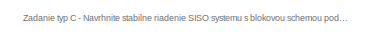
[diagram: root canvas - part 1/3, top left region]
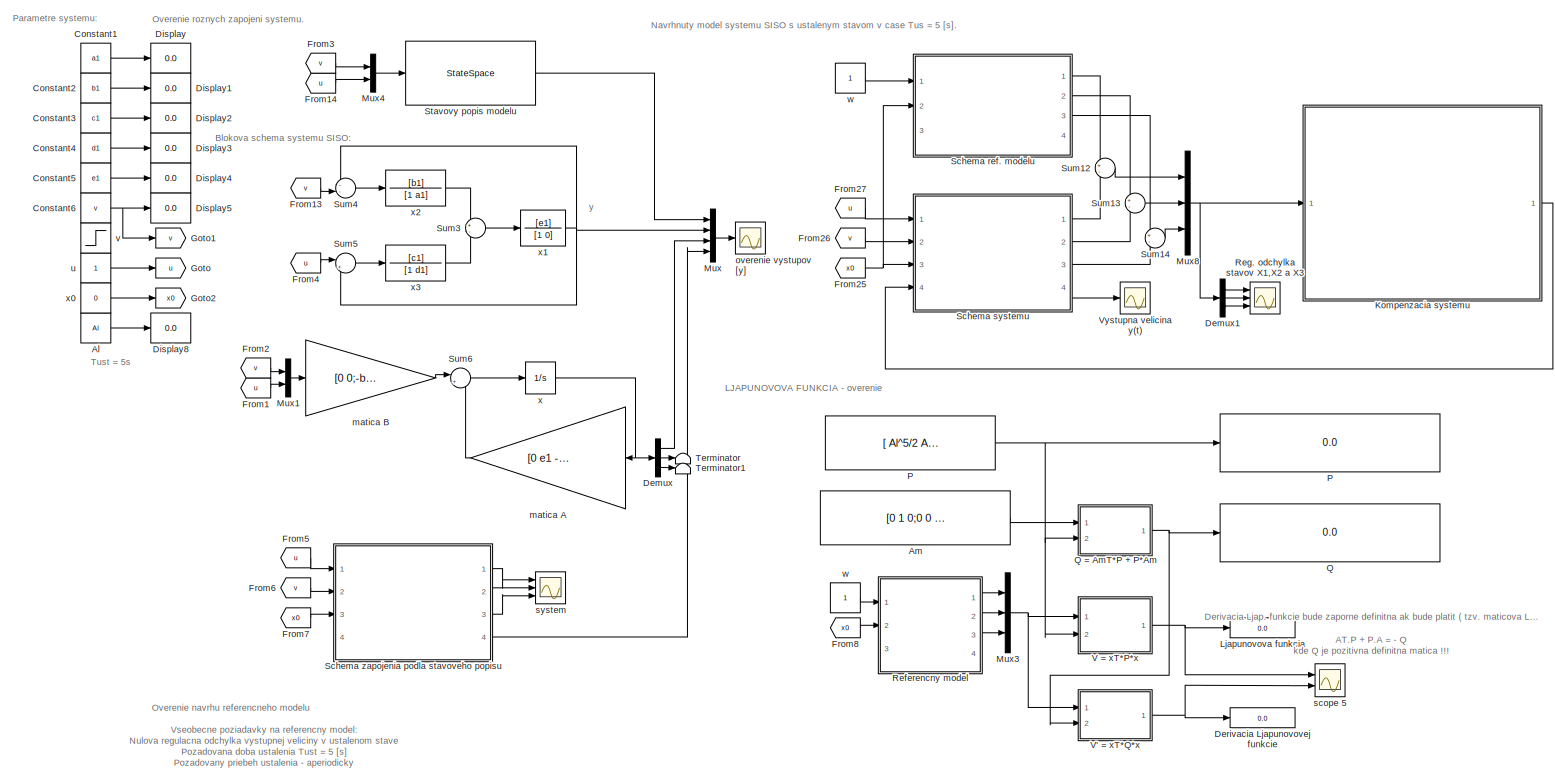
[diagram: root canvas - part 2/3, full width, middle band]
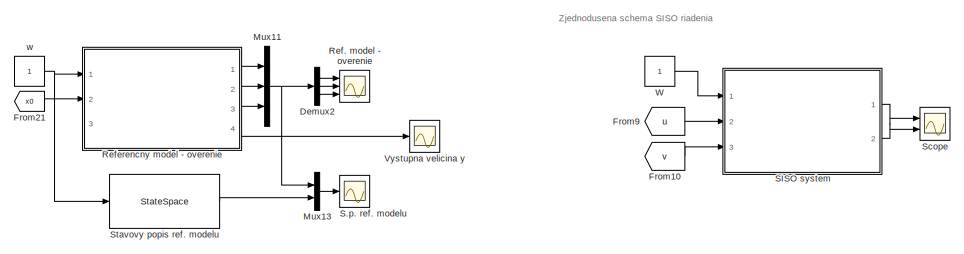
[diagram: root canvas - part 3/3, bottom center region]
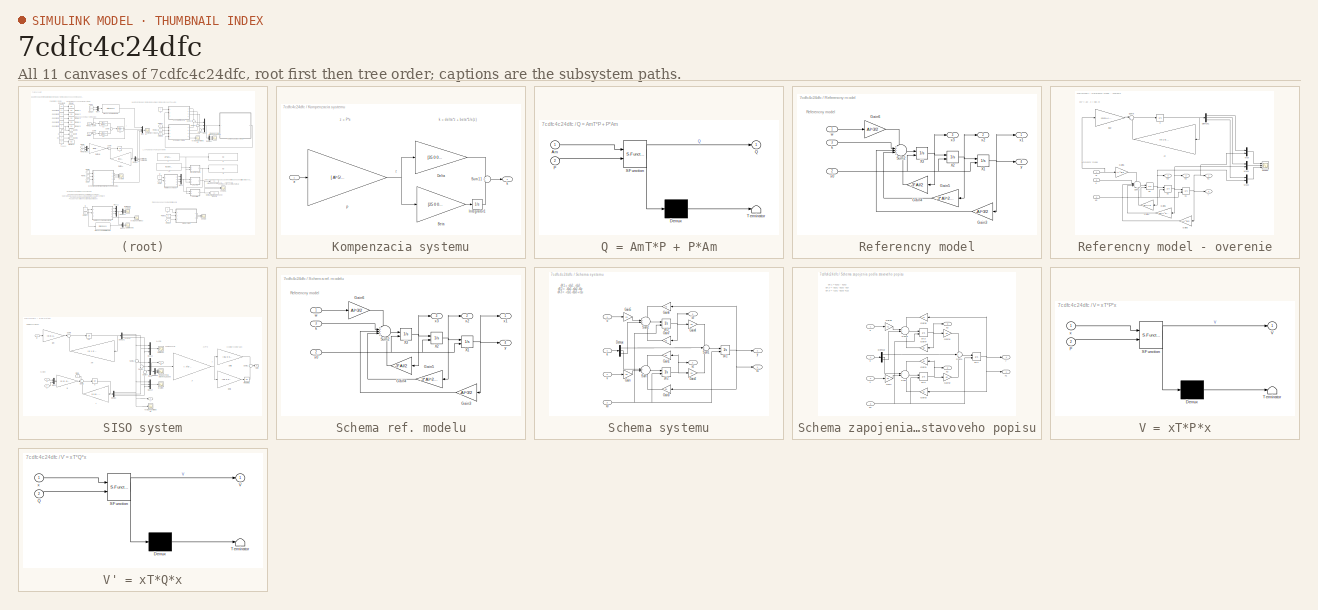
[diagram: thumbnail index - all 11 canvases of the model, root first then tree order]
MODEL slx_7cdfc4c24dfc
KIND model
CONFIG AbsTol = auto
CONFIG EnableMultiTasking = off
CONFIG FixedStep = auto
CONFIG MaxStep = auto
CONFIG MinStep = auto
CONFIG RelTol = 1e-3
CONFIG SampleTimeConstraint = Unconstrained
CONFIG SolverName = VariableStepAuto
CONFIG StartTime = 0.0
CONFIG StopTime = 10
WORKSPACE source: mxarray member
WORKSPACE Al = 3
WORKSPACE a1 = -0.47
WORKSPACE b1 = -3.32
WORKSPACE c1 = -0.05
WORKSPACE d1 = -0.13
WORKSPACE e1 = 2.5
WORKSPACE v = 0.12
BLOCK [Constant]  w 
  NameLocation = left
BLOCK [Constant] Al
  NameLocation = left
  Value = Al
BLOCK [Constant] Am  
  Value = [0 1 0;0 0 1;-Al^3/2 -3*Al^2/2 -3*Al/2]
BLOCK [Constant] Constant1
  Value = a1
BLOCK [Constant] Constant2
  Value = b1
BLOCK [Constant] Constant3
  Value = c1
BLOCK [Constant] Constant4
  Value = d1
BLOCK [Constant] Constant5
  Value = e1
BLOCK [Constant] Constant6
  Value = v
BLOCK [Demux] Demux
  Outputs = 3
  Ports = [1, 3]
BLOCK [Demux] Demux1
  Outputs = 3
  Ports = [1, 3]
BLOCK [Demux] Demux2
  Outputs = 3
  Ports = [1, 3]
BLOCK [Display] Derivacia Ljapunovovej funkcie
  Decimation = 1
  Ports = [1]
BLOCK [Display] Display
  Decimation = 1
  Ports = [1]
BLOCK [Display] Display1
  Decimation = 1
  Ports = [1]
BLOCK [Display] Display2
  Decimation = 1
  Ports = [1]
BLOCK [Display] Display3
  Decimation = 1
  Ports = [1]
BLOCK [Display] Display4
  Decimation = 1
  Ports = [1]
BLOCK [Display] Display5
  Decimation = 1
  Ports = [1]
BLOCK [Display] Display8
  Decimation = 1
  Ports = [1]
BLOCK [From] From1
  GotoTag = u
BLOCK [From] From10
  GotoTag = v
BLOCK [From] From13
  GotoTag = v
BLOCK [From] From14
  GotoTag = u
BLOCK [From] From2
  GotoTag = v
BLOCK [From] From21
  GotoTag = x0
BLOCK [From] From25
  GotoTag = x0
BLOCK [From] From26
  GotoTag = v
BLOCK [From] From27
  GotoTag = u
BLOCK [From] From3
  GotoTag = v
BLOCK [From] From4
  GotoTag = u
BLOCK [From] From5
  GotoTag = u
BLOCK [From] From6
  GotoTag = v
BLOCK [From] From7
  GotoTag = x0
BLOCK [From] From8
  GotoTag = x0
BLOCK [From] From9
  GotoTag = u
BLOCK [Goto] Goto
  GotoTag = u
BLOCK [Goto] Goto1
  GotoTag = v
BLOCK [Goto] Goto2
  GotoTag = x0
BLOCK [SubSystem] Kompenzacia systemu
  Ports = [1, 1]
BLOCK [Gain] Kompenzacia systemu/Beta
  Gain = [25 0 0;0 25 0;0 0 25]
  Multiplication = Matrix(K*u)
BLOCK [Gain] Kompenzacia systemu/Delta
  Gain = [35 0 0;0 35 0;0 0 35]
  Multiplication = Matrix(K*u)
BLOCK [Integrator] Kompenzacia systemu/Integrator1
  Ports = [1, 1]
BLOCK [Gain] Kompenzacia systemu/P
  Gain = [ Al^5/2  Al^4  Al^3/2; Al^4 5*Al^3/2 3*Al^2/2; Al^3/2 3*Al^2/2 3*Al/2]
  Multiplication = Matrix(K*u)
BLOCK [Sum] Kompenzacia systemu/Sum11
  Ports = [2, 1]
BLOCK [Inport] Kompenzacia systemu/e
BLOCK [Outport] Kompenzacia systemu/k
BLOCK [Display] Ljapunovova funkcia
  Decimation = 1
  Ports = [1]
BLOCK [Mux] Mux
  DisplayOption = bar
  Ports = [4, 1]
BLOCK [Mux] Mux1
  DisplayOption = bar
  Inputs = 2
  Ports = [2, 1]
BLOCK [Mux] Mux11
  DisplayOption = bar
  Inputs = 3
  Ports = [3, 1]
BLOCK [Mux] Mux13
  DisplayOption = bar
  Inputs = 2
  Ports = [2, 1]
BLOCK [Mux] Mux3
  DisplayOption = bar
  Inputs = 3
  Ports = [3, 1]
BLOCK [Mux] Mux4
  DisplayOption = bar
  Inputs = 2
  Ports = [2, 1]
BLOCK [Mux] Mux8
  DisplayOption = bar
  Inputs = 3
  Ports = [3, 1]
BLOCK [Display] P
  Decimation = 1
  Ports = [1]
BLOCK [Constant] P  
  Value = [ Al^5/2  Al^4  Al^3/2; Al^4 5*Al^3/2 3*Al^2/2; Al^3/2 3*Al^2/2 3*Al/2]
BLOCK [Display] Q
  Decimation = 1
  Ports = [1]
BLOCK [SubSystem] Q = AmT*P + P*Am
  ErrorFcn = Stateflow.Translate.translate
  PermitHierarchicalResolution = ExplicitOnly
  Ports = [2, 1]
  SFBlockType = MATLAB Function
  TreatAsAtomicUnit = on
BLOCK [Demux] Q = AmT*P + P*Am/ Demux 
  Outputs = 1
  Ports = [1, 1]
BLOCK [S-Function] Q = AmT*P + P*Am/ SFunction 
  EnableBusSupport = on
  FunctionName = sf_sfun
  PortCounts = [2 2]
  Ports = [2, 2]
  SFcnIsStateOwnerBlock = off
  SFunctionDeploymentMode = off
  Tag = Stateflow S-Function 6
BLOCK [Terminator] Q = AmT*P + P*Am/ Terminator 
BLOCK [Inport] Q = AmT*P + P*Am/Am
BLOCK [Inport] Q = AmT*P + P*Am/P
  Port = 2
BLOCK [Outport] Q = AmT*P + P*Am/Q
BLOCK [Scope] Ref. model - overenie
  Floating = off
  NumInputPorts = 3
  Ports = [3]
  ScopeSpecificationString = Simulink.scopes.TimeScopeBlockCfg('CurrentConfiguration', extmgr.ConfigurationSet(extmgr.Configuration('Core','General UI',true,'FigureColor',[1 1 1]),extmgr.Configuration('Core','Source UI',true),extmgr.Configuration('Sources','WiredSimulink',true,'DataLoggingVariableName','ScopeData11'),extmgr.Configuration('Visuals','Time Domain',true,'SerializedDisplays',{struct('MinYLimReal','-0.125','MaxYLim...<+3358ch>
BLOCK [SubSystem] Referencny model
  Ports = [3, 4]
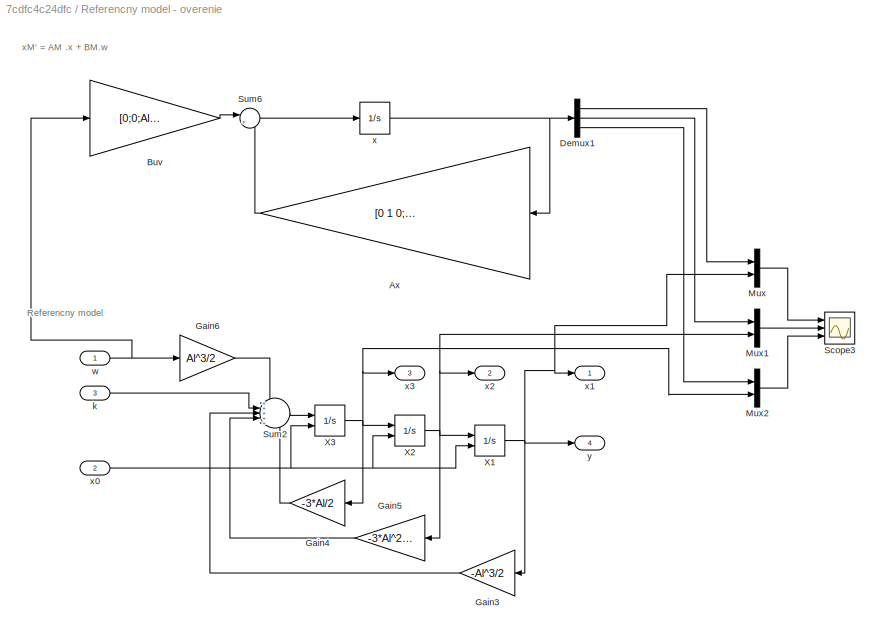
BLOCK [SubSystem] Referencny model - overenie
  Ports = [3, 4]
BLOCK [Gain] Referencny model - overenie/Ax
  Gain = [0 1 0;0 0 1;-Al^3/2 -3*Al^2/2 -3*Al/2]
  Multiplication = Matrix(K*u)
BLOCK [Gain] Referencny model - overenie/Buv
  Gain = [0;0;Al^3/2]
  Multiplication = Matrix(K*u)
BLOCK [Demux] Referencny model - overenie/Demux1
  Outputs = 3
  Ports = [1, 3]
BLOCK [Gain] Referencny model - overenie/Gain3
  Gain = -Al^3/2
BLOCK [Gain] Referencny model - overenie/Gain4
  Gain = -3*Al/2
BLOCK [Gain] Referencny model - overenie/Gain5
  Gain = -3*Al^2/2
BLOCK [Gain] Referencny model - overenie/Gain6
  Gain = Al^3/2
BLOCK [Mux] Referencny model - overenie/Mux
  DisplayOption = bar
  Inputs = 2
  Ports = [2, 1]
BLOCK [Mux] Referencny model - overenie/Mux1
  DisplayOption = bar
  Inputs = 2
  Ports = [2, 1]
BLOCK [Mux] Referencny model - overenie/Mux2
  DisplayOption = bar
  Inputs = 2
  Ports = [2, 1]
BLOCK [Scope] Referencny model - overenie/Scope3
  Floating = off
  NumInputPorts = 3
  Ports = [3]
  ScopeSpecificationString = Simulink.scopes.TimeScopeBlockCfg('CurrentConfiguration', extmgr.ConfigurationSet(extmgr.Configuration('Core','General UI',true,'FigureColor',[1 1 1]),extmgr.Configuration('Core','Source UI',true),extmgr.Configuration('Sources','WiredSimulink',true,'DataLoggingVariableName','ScopeData2'),extmgr.Configuration('Visuals','Time Domain',true,'SerializedDisplays',{struct('MinYLimReal','-0.125','MaxYLimR...<+3545ch>
BLOCK [Sum] Referencny model - overenie/Sum2
  Inputs = +++++
  Ports = [5, 1]
BLOCK [Sum] Referencny model - overenie/Sum6
  Inputs = |++
  Ports = [2, 1]
BLOCK [Integrator] Referencny model - overenie/X1
  InitialConditionSource = external
  Ports = [2, 1]
BLOCK [Integrator] Referencny model - overenie/X2
  InitialConditionSource = external
  Ports = [2, 1]
BLOCK [Integrator] Referencny model - overenie/X3
  InitialConditionSource = external
  Ports = [2, 1]
BLOCK [Inport] Referencny model - overenie/k
  Port = 3
BLOCK [Inport] Referencny model - overenie/w
BLOCK [Integrator] Referencny model - overenie/x
  Ports = [1, 1]
BLOCK [Inport] Referencny model - overenie/x0
  Port = 2
BLOCK [Outport] Referencny model - overenie/x1
BLOCK [Outport] Referencny model - overenie/x2
  Port = 2
BLOCK [Outport] Referencny model - overenie/x3
  Port = 3
BLOCK [Outport] Referencny model - overenie/y
  Port = 4
BLOCK [Gain] Referencny model/Gain3
  Gain = -Al^3/2
BLOCK [Gain] Referencny model/Gain4
  Gain = -3*Al/2
BLOCK [Gain] Referencny model/Gain5
  Gain = -3*Al^2/2
BLOCK [Gain] Referencny model/Gain6
  Gain = Al^3/2
BLOCK [Sum] Referencny model/Sum2
  Inputs = +++++
  Ports = [5, 1]
BLOCK [Integrator] Referencny model/X1
  InitialConditionSource = external
  Ports = [2, 1]
BLOCK [Integrator] Referencny model/X2
  InitialConditionSource = external
  Ports = [2, 1]
BLOCK [Integrator] Referencny model/X3
  InitialConditionSource = external
  Ports = [2, 1]
BLOCK [Inport] Referencny model/k
  Port = 3
BLOCK [Inport] Referencny model/w
BLOCK [Inport] Referencny model/x0
  Port = 2
BLOCK [Outport] Referencny model/x1
BLOCK [Outport] Referencny model/x2
  Port = 2
BLOCK [Outport] Referencny model/x3
  Port = 3
BLOCK [Outport] Referencny model/y
  Port = 4
BLOCK [Scope] Reg. odchylka stavov X1,X2 a X3
  Floating = off
  NumInputPorts = 3
  Ports = [3]
  ScopeSpecificationString = Simulink.scopes.TimeScopeBlockCfg('CurrentConfiguration', extmgr.ConfigurationSet(extmgr.Configuration('Core','General UI',true,'FigureColor',[1 1 1]),extmgr.Configuration('Core','Source UI',true),extmgr.Configuration('Sources','WiredSimulink',true,'DataLoggingVariableName','ScopeData5'),extmgr.Configuration('Visuals','Time Domain',true,'SerializedDisplays',{struct('MinYLimReal','-0.01194','MaxYLi...<+3388ch>
BLOCK [Scope] S.p. ref. modelu
  Floating = off
  NumInputPorts = 1
  Ports = [1]
  ScopeSpecificationString = Simulink.scopes.TimeScopeBlockCfg('CurrentConfiguration', extmgr.ConfigurationSet(extmgr.Configuration('Core','General UI',true,'FigureColor',[1 1 1]),extmgr.Configuration('Core','Source UI',true),extmgr.Configuration('Sources','WiredSimulink',true,'DataLoggingVariableName','ScopeData2'),extmgr.Configuration('Visuals','Time Domain',true,'SerializedDisplays',{struct('MinYLimReal','-1.35938','MaxYLi...<+2550ch>
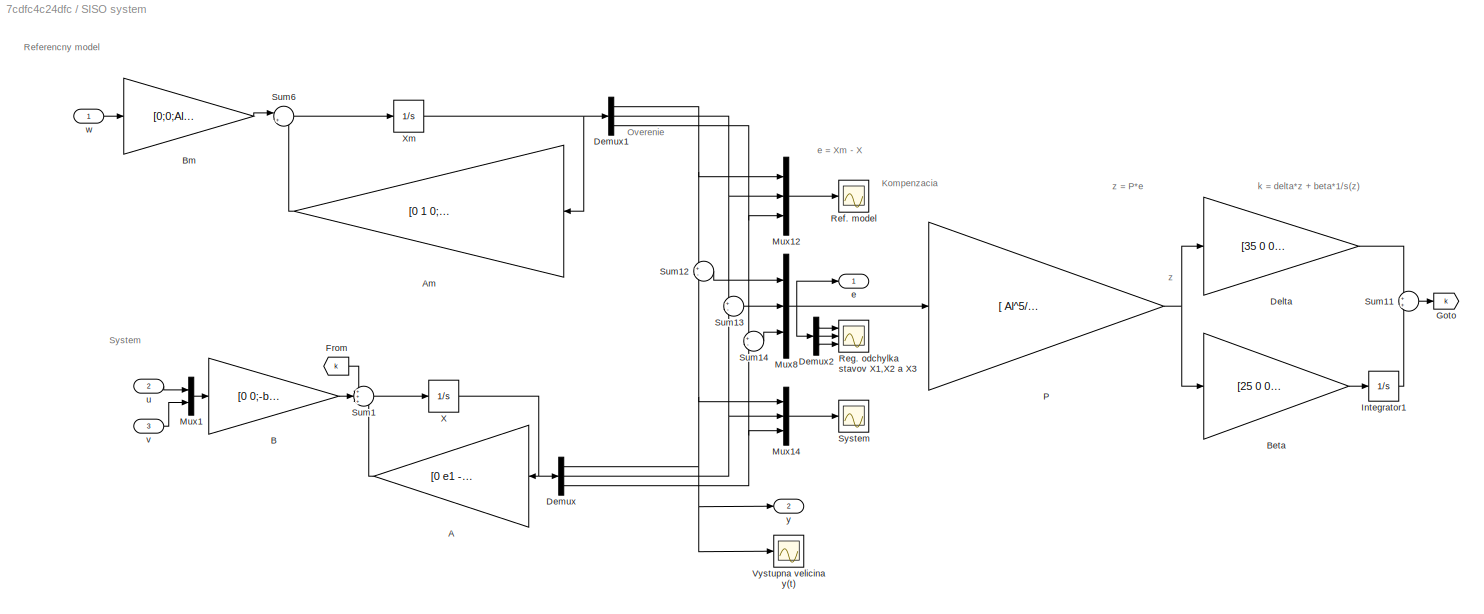
BLOCK [SubSystem] SISO system
  Ports = [3, 2]
BLOCK [Gain] SISO system/A
  Gain = [0 e1 -e1;-b1 -a1 0;-c1 0 -d1]
  Multiplication = Matrix(K*u)
BLOCK [Gain] SISO system/Am
  Gain = [0 1 0;0 0 1;-Al^3/2 -3*Al^2/2 -3*Al/2]
  Multiplication = Matrix(K*u)
BLOCK [Gain] SISO system/B 
  Gain = [0 0;-b1 0;0 c1]
  Multiplication = Matrix(K*u)
BLOCK [Gain] SISO system/Beta
  Gain = [25 0 0;0 25 0;0 0 25]
  Multiplication = Matrix(K*u)
BLOCK [Gain] SISO system/Bm
  Gain = [0;0;Al^3/2]
  Multiplication = Matrix(K*u)
BLOCK [Gain] SISO system/Delta
  Gain = [35 0 0;0 35 0;0 0 35]
  Multiplication = Matrix(K*u)
BLOCK [Demux] SISO system/Demux
  Outputs = 3
  Ports = [1, 3]
BLOCK [Demux] SISO system/Demux1
  Outputs = 3
  Ports = [1, 3]
BLOCK [Demux] SISO system/Demux2
  Outputs = 3
  Ports = [1, 3]
BLOCK [From] SISO system/From
  GotoTag = k
BLOCK [Goto] SISO system/Goto
  GotoTag = k
BLOCK [Integrator] SISO system/Integrator1
  Ports = [1, 1]
BLOCK [Mux] SISO system/Mux1
  DisplayOption = bar
  Inputs = 2
  Ports = [2, 1]
BLOCK [Mux] SISO system/Mux12
  DisplayOption = bar
  Inputs = 3
  Ports = [3, 1]
BLOCK [Mux] SISO system/Mux14
  DisplayOption = bar
  Inputs = 3
  Ports = [3, 1]
BLOCK [Mux] SISO system/Mux8
  DisplayOption = bar
  Inputs = 3
  Ports = [3, 1]
BLOCK [Gain] SISO system/P
  Gain = [ Al^5/2  Al^4  Al^3/2; Al^4 5*Al^3/2 3*Al^2/2; Al^3/2 3*Al^2/2 3*Al/2]
  Multiplication = Matrix(K*u)
BLOCK [Scope] SISO system/Ref. model
  Floating = off
  NumInputPorts = 1
  Ports = [1]
  ScopeSpecificationString = Simulink.scopes.TimeScopeBlockCfg('CurrentConfiguration', extmgr.ConfigurationSet(extmgr.Configuration('Core','General UI',true,'FigureColor',[1 1 1]),extmgr.Configuration('Core','Source UI',true),extmgr.Configuration('Sources','WiredSimulink',true,'DataLoggingVariableName','ScopeData3'),extmgr.Configuration('Visuals','Time Domain',true,'SerializedDisplays',{struct('MinYLimReal','-1.35938','MaxYLi...<+1835ch>
BLOCK [Scope] SISO system/Reg. odchylka stavov X1,X2 a X3
  Floating = off
  NumInputPorts = 3
  Ports = [3]
  ScopeSpecificationString = Simulink.scopes.TimeScopeBlockCfg('CurrentConfiguration', extmgr.ConfigurationSet(extmgr.Configuration('Core','General UI',true,'FigureColor',[1 1 1]),extmgr.Configuration('Core','Source UI',true),extmgr.Configuration('Sources','WiredSimulink',true,'DataLoggingVariableName','ScopeData1'),extmgr.Configuration('Visuals','Time Domain',true,'SerializedDisplays',{struct('MinYLimReal','-0.00837','MaxYLi...<+3345ch>
BLOCK [Sum] SISO system/Sum1
  Inputs = +++
  Ports = [3, 1]
BLOCK [Sum] SISO system/Sum11
  Ports = [2, 1]
BLOCK [Sum] SISO system/Sum12
  Inputs = +-
  Ports = [2, 1]
BLOCK [Sum] SISO system/Sum13
  Inputs = +-
  Ports = [2, 1]
BLOCK [Sum] SISO system/Sum14
  Inputs = +-
  Ports = [2, 1]
BLOCK [Sum] SISO system/Sum6
  Inputs = |++
  Ports = [2, 1]
BLOCK [Scope] SISO system/System
  Floating = off
  NumInputPorts = 1
  Ports = [1]
  ScopeSpecificationString = Simulink.scopes.TimeScopeBlockCfg('CurrentConfiguration', extmgr.ConfigurationSet(extmgr.Configuration('Core','General UI',true,'FigureColor',[1 1 1]),extmgr.Configuration('Core','Source UI',true),extmgr.Configuration('Sources','WiredSimulink',true,'DataLoggingVariableName','ScopeData4'),extmgr.Configuration('Visuals','Time Domain',true,'SerializedDisplays',{struct('MinYLimReal','-1.40012','MaxYLi...<+1782ch>
BLOCK [Scope] SISO system/Vystupna velicina y(t)
  Floating = off
  NumInputPorts = 1
  Ports = [1]
  ScopeSpecificationString = Simulink.scopes.TimeScopeBlockCfg('CurrentConfiguration', extmgr.ConfigurationSet(extmgr.Configuration('Core','General UI',true,'FigureColor',[1 1 1]),extmgr.Configuration('Core','Source UI',true),extmgr.Configuration('Sources','WiredSimulink',true,'DataLoggingVariableName','ScopeData5'),extmgr.Configuration('Visuals','Time Domain',true,'SerializedDisplays',{struct('MinYLimReal','-0.15613','MaxYLi...<+1722ch>
BLOCK [Integrator] SISO system/X
  Ports = [1, 1]
BLOCK [Integrator] SISO system/Xm
  Ports = [1, 1]
BLOCK [Outport] SISO system/e
BLOCK [Inport] SISO system/u
  Port = 2
BLOCK [Inport] SISO system/v
  Port = 3
BLOCK [Inport] SISO system/w
BLOCK [Outport] SISO system/y
  Port = 2
BLOCK [SubSystem] Schema ref. modelu
  Ports = [3, 4]
BLOCK [Gain] Schema ref. modelu/Gain3
  Gain = -Al^3/2
BLOCK [Gain] Schema ref. modelu/Gain4
  Gain = -3*Al/2
BLOCK [Gain] Schema ref. modelu/Gain5
  Gain = -3*Al^2/2
BLOCK [Gain] Schema ref. modelu/Gain6
  Gain = Al^3/2
BLOCK [Sum] Schema ref. modelu/Sum2
  Inputs = +++++
  Ports = [5, 1]
BLOCK [Integrator] Schema ref. modelu/X1
  InitialConditionSource = external
  Ports = [2, 1]
BLOCK [Integrator] Schema ref. modelu/X2
  InitialConditionSource = external
  Ports = [2, 1]
BLOCK [Integrator] Schema ref. modelu/X3
  InitialConditionSource = external
  Ports = [2, 1]
BLOCK [Inport] Schema ref. modelu/k
  Port = 3
BLOCK [Inport] Schema ref. modelu/w
BLOCK [Inport] Schema ref. modelu/x0
  Port = 2
BLOCK [Outport] Schema ref. modelu/x1
BLOCK [Outport] Schema ref. modelu/x2
  Port = 2
BLOCK [Outport] Schema ref. modelu/x3
  Port = 3
BLOCK [Outport] Schema ref. modelu/y
  Port = 4
BLOCK [SubSystem] Schema systemu
  Ports = [4, 4]
BLOCK [Demux] Schema systemu/Demux
  Outputs = 3
  Ports = [1, 3]
BLOCK [Gain] Schema systemu/Gain
  Gain = b1
BLOCK [Gain] Schema systemu/Gain1
  Gain = a1
BLOCK [Gain] Schema systemu/Gain2
  Gain = e1
BLOCK [Gain] Schema systemu/Gain3
  Gain = b1
BLOCK [Gain] Schema systemu/Gain4
  Gain = e1
BLOCK [Gain] Schema systemu/Gain5
  Gain = c1
BLOCK [Gain] Schema systemu/Gain6
  Gain = c1
BLOCK [Gain] Schema systemu/Gain7
  Gain = d1
BLOCK [Sum] Schema systemu/Sum
  Inputs = -+--
  Ports = [4, 1]
BLOCK [Sum] Schema systemu/Sum1
  Inputs = -++
  Ports = [3, 1]
BLOCK [Sum] Schema systemu/Sum2
  Inputs = -++-
  Ports = [4, 1]
BLOCK [Inport] Schema systemu/k
  Port = 4
BLOCK [Integrator] Schema systemu/sX1
  InitialConditionSource = external
  Ports = [2, 1]
BLOCK [Integrator] Schema systemu/sX2
  InitialConditionSource = external
  Ports = [2, 1]
BLOCK [Integrator] Schema systemu/sX3
  InitialConditionSource = external
  Ports = [2, 1]
BLOCK [Inport] Schema systemu/u
BLOCK [Inport] Schema systemu/v
  Port = 2
BLOCK [Inport] Schema systemu/x0
  Port = 3
BLOCK [Outport] Schema systemu/x1
BLOCK [Outport] Schema systemu/x2
  Port = 2
BLOCK [Outport] Schema systemu/x3
  Port = 3
BLOCK [Outport] Schema systemu/y
  Port = 4
BLOCK [SubSystem] Schema zapojenia podla stavoveho popisu
  Ports = [4, 4]
BLOCK [Demux] Schema zapojenia podla stavoveho popisu/Demux
  Outputs = 3
  Ports = [1, 3]
BLOCK [Gain] Schema zapojenia podla stavoveho popisu/Gain
  Gain = b1
BLOCK [Gain] Schema zapojenia podla stavoveho popisu/Gain1
  Gain = a1
BLOCK [Gain] Schema zapojenia podla stavoveho popisu/Gain2
  Gain = e1
BLOCK [Gain] Schema zapojenia podla stavoveho popisu/Gain3
  Gain = b1
BLOCK [Gain] Schema zapojenia podla stavoveho popisu/Gain4
  Gain = e1
BLOCK [Gain] Schema zapojenia podla stavoveho popisu/Gain5
  Gain = c1
BLOCK [Gain] Schema zapojenia podla stavoveho popisu/Gain6
  Gain = c1
BLOCK [Gain] Schema zapojenia podla stavoveho popisu/Gain7
  Gain = d1
BLOCK [Sum] Schema zapojenia podla stavoveho popisu/Sum
  Inputs = -+--
  Ports = [4, 1]
BLOCK [Sum] Schema zapojenia podla stavoveho popisu/Sum1
  Inputs = -++
  Ports = [3, 1]
BLOCK [Sum] Schema zapojenia podla stavoveho popisu/Sum2
  Inputs = -++-
  Ports = [4, 1]
BLOCK [Inport] Schema zapojenia podla stavoveho popisu/k
  Port = 4
BLOCK [Integrator] Schema zapojenia podla stavoveho popisu/sX1
  InitialConditionSource = external
  Ports = [2, 1]
BLOCK [Integrator] Schema zapojenia podla stavoveho popisu/sX2
  InitialConditionSource = external
  Ports = [2, 1]
BLOCK [Integrator] Schema zapojenia podla stavoveho popisu/sX3
  InitialConditionSource = external
  Ports = [2, 1]
BLOCK [Inport] Schema zapojenia podla stavoveho popisu/u
BLOCK [Inport] Schema zapojenia podla stavoveho popisu/v
  Port = 2
BLOCK [Inport] Schema zapojenia podla stavoveho popisu/x0
  Port = 3
BLOCK [Outport] Schema zapojenia podla stavoveho popisu/x1
BLOCK [Outport] Schema zapojenia podla stavoveho popisu/x2
  Port = 2
BLOCK [Outport] Schema zapojenia podla stavoveho popisu/x3
  Port = 3
BLOCK [Outport] Schema zapojenia podla stavoveho popisu/y
  Port = 4
BLOCK [Scope] Scope
  Floating = off
  NumInputPorts = 2
  Ports = [2]
  ScopeSpecificationString = Simulink.scopes.TimeScopeBlockCfg('CurrentConfiguration', extmgr.ConfigurationSet(extmgr.Configuration('Core','General UI',true,'FigureColor',[1 1 1]),extmgr.Configuration('Core','Source UI',true),extmgr.Configuration('Sources','WiredSimulink',true,'DataLoggingVariableName','ScopeData6'),extmgr.Configuration('Visuals','Time Domain',true,'SerializedDisplays',{struct('MinYLimReal','-0.11278','MaxYLi...<+2539ch>
BLOCK [StateSpace] Stavovy popis modelu
  A = [0 e1 -e1;-b1 -a1 0;-c1 0 -d1]
  B = [0 0;-b1 0;0 c1]
  C = [1 0 0]
  D = [0 0]
  InitialCondition = 0
  Ports = [1, 1]
BLOCK [StateSpace] Stavovy popis ref. modelu
  A = [0 1 0;0 0 1;-Al^3/2 -3*Al^2/2 -3*Al/2]
  B = [0;0;Al^3/2]
  C = [1 0 0;0 1 0;0 0 1]
  D = [0;0;0]
  InitialCondition = 0
  Ports = [1, 1]
BLOCK [Sum] Sum12
  Inputs = +-
  Ports = [2, 1]
BLOCK [Sum] Sum13
  Inputs = +-
  Ports = [2, 1]
BLOCK [Sum] Sum14
  Inputs = +-
  Ports = [2, 1]
BLOCK [Sum] Sum3
  Inputs = +-
  Ports = [2, 1]
BLOCK [Sum] Sum4
  Inputs = --|
  Ports = [2, 1]
BLOCK [Sum] Sum5
  Inputs = |+-
  Ports = [2, 1]
BLOCK [Sum] Sum6
  Inputs = |++
  Ports = [2, 1]
BLOCK [Terminator] Terminator
BLOCK [Terminator] Terminator1
BLOCK [SubSystem] V = xT*P*x
  ErrorFcn = Stateflow.Translate.translate
  PermitHierarchicalResolution = ExplicitOnly
  Ports = [2, 1]
  SFBlockType = MATLAB Function
  TreatAsAtomicUnit = on
BLOCK [Demux] V = xT*P*x/ Demux 
  Outputs = 1
  Ports = [1, 1]
BLOCK [S-Function] V = xT*P*x/ SFunction 
  EnableBusSupport = on
  FunctionName = sf_sfun
  PortCounts = [2 2]
  Ports = [2, 2]
  SFcnIsStateOwnerBlock = off
  SFunctionDeploymentMode = off
  Tag = Stateflow S-Function 4
BLOCK [Terminator] V = xT*P*x/ Terminator 
BLOCK [Inport] V = xT*P*x/P
  Port = 2
BLOCK [Outport] V = xT*P*x/V
BLOCK [Inport] V = xT*P*x/x
BLOCK [SubSystem] V' = xT*Q*x
  ErrorFcn = Stateflow.Translate.translate
  PermitHierarchicalResolution = ExplicitOnly
  Ports = [2, 1]
  SFBlockType = MATLAB Function
  TreatAsAtomicUnit = on
BLOCK [Demux] V' = xT*Q*x/ Demux 
  Outputs = 1
  Ports = [1, 1]
BLOCK [S-Function] V' = xT*Q*x/ SFunction 
  EnableBusSupport = on
  FunctionName = sf_sfun
  PortCounts = [2 2]
  Ports = [2, 2]
  SFcnIsStateOwnerBlock = off
  SFunctionDeploymentMode = off
  Tag = Stateflow S-Function 5
BLOCK [Terminator] V' = xT*Q*x/ Terminator 
BLOCK [Inport] V' = xT*Q*x/Q
  Port = 2
BLOCK [Outport] V' = xT*Q*x/V
BLOCK [Inport] V' = xT*Q*x/x
BLOCK [Scope] Vystupna velicina y
  Floating = off
  NumInputPorts = 1
  Ports = [1]
  ScopeSpecificationString = Simulink.scopes.TimeScopeBlockCfg('CurrentConfiguration', extmgr.ConfigurationSet(extmgr.Configuration('Core','General UI',true,'FigureColor',[1 1 1]),extmgr.Configuration('Core','Source UI',true),extmgr.Configuration('Sources','WiredSimulink',true,'DataLoggingVariableName','ScopeData10'),extmgr.Configuration('Visuals','Time Domain',true,'SerializedDisplays',{struct('MinYLimReal','-0.125','MaxYLim...<+1741ch>
BLOCK [Scope] Vystupna velicina y(t)
  Floating = off
  NumInputPorts = 1
  Ports = [1]
  ScopeSpecificationString = Simulink.scopes.TimeScopeBlockCfg('CurrentConfiguration', extmgr.ConfigurationSet(extmgr.Configuration('Core','General UI',true,'FigureColor',[1 1 1]),extmgr.Configuration('Core','Source UI',true),extmgr.Configuration('Sources','WiredSimulink',true,'DataLoggingVariableName','ScopeData8'),extmgr.Configuration('Visuals','Time Domain',true,'SerializedDisplays',{struct('MinYLimReal','-0.14983','MaxYLi...<+1722ch>
BLOCK [Constant] W
BLOCK [Gain] matica A
  Gain = [0 e1 -e1;-b1 -a1 0;-c1 0 -d1]
  Multiplication = Matrix(K*u)
BLOCK [Gain] matica B
  Gain = [0 0;-b1 0;0 c1]
  Multiplication = Matrix(K*u)
BLOCK [Scope] overenie vystupov [y]
  Floating = off
  NumInputPorts = 1
  Ports = [1]
  ScopeSpecificationString = Simulink.scopes.TimeScopeBlockCfg('CurrentConfiguration', extmgr.ConfigurationSet(extmgr.Configuration('Core','General UI',true,'FigureColor',[1 1 1]),extmgr.Configuration('Core','Source UI',true),extmgr.Configuration('Sources','WiredSimulink',true,'DataLoggingVariableName','ScopeData6'),extmgr.Configuration('Visuals','Time Domain',true,'SerializedDisplays',{struct('MinYLimReal','-251604593627.367...<+1939ch>
BLOCK [Scope] scope 5
  Floating = off
  NumInputPorts = 2
  Ports = [2]
  ScopeSpecificationString = Simulink.scopes.TimeScopeBlockCfg('CurrentConfiguration', extmgr.ConfigurationSet(extmgr.Configuration('Core','General UI',true,'FigureColor',[1 1 1]),extmgr.Configuration('Core','Source UI',true),extmgr.Configuration('Sources','WiredSimulink',true,'DataLoggingVariableName','ScopeData9'),extmgr.Configuration('Visuals','Time Domain',true,'SerializedDisplays',{struct('MinYLimReal','-17.56919','MaxYL...<+2219ch>
BLOCK [Scope] system
  Floating = off
  NumInputPorts = 3
  Ports = [3]
  ScopeSpecificationString = Simulink.scopes.TimeScopeBlockCfg('CurrentConfiguration', extmgr.ConfigurationSet(extmgr.Configuration('Core','General UI',true,'FigureColor',[1 1 1]),extmgr.Configuration('Core','Source UI',true),extmgr.Configuration('Sources','WiredSimulink',true,'DataLoggingVariableName','ScopeData9'),extmgr.Configuration('Visuals','Time Domain',true,'SerializedDisplays',{struct('MinYLimReal','-251601544467.641...<+3451ch>
BLOCK [Constant] u
  NameLocation = left
BLOCK [Step] v
  After = 5*v
  Before = v
  NameLocation = left
  SampleTime = 0
BLOCK [Constant] w
BLOCK [Constant] w 
  NameLocation = left
BLOCK [Integrator] x
  Ports = [1, 1]
BLOCK [Constant] x0
  NameLocation = left
  Value = 0
BLOCK [TransferFcn] x1
  Denominator = [1 0]
  Numerator = [e1]
BLOCK [TransferFcn] x2
  Denominator = [1 a1]
  Numerator = [b1]
BLOCK [TransferFcn] x3
  Denominator = [1 d1]
  Numerator = [c1]
ANNOTATION (root): Derivacia Ljap. funkcie bude zaporne definitna ak bude platit ( tzv. maticova Ljapunovova rovnica ): A T . P + P . A = - Q kde Q je pozitivna definitna matica !!!
ANNOTATION (root): Vseobecne poziadavky na referencny model: Nulova regulacna odchylka vystupnej veliciny v ustalenom stave Pozadovana doba ustalenia Tust = 5 [s] Pozadovany priebeh ustalenia - aperiodicky
ANNOTATION (root): Zadanie typ C - Navrhnite stabilne riadenie SISO systemu s blokovou schemou podla obr.
ANNOTATION (root): Blokova schema systemu SISO:
ANNOTATION (root): LJAPUNOVOVA FUNKCIA - overenie
ANNOTATION (root): Navrhnuty model systemu SISO s ustalenym stavom v case Tus = 5 [s].
ANNOTATION (root): Overenie navrhu referencneho modelu
ANNOTATION (root): Overenie roznych zapojeni systemu.
ANNOTATION (root): Parametre systemu:
ANNOTATION (root): Tust = 5s
ANNOTATION (root): Zjednodusena schema SISO riadenia
ANNOTATION (root): y
ANNOTATION Kompenzacia systemu: k = delta *z + beta *1/s(z)
ANNOTATION Kompenzacia systemu: z = P *e
ANNOTATION Kompenzacia systemu: z
ANNOTATION Referencny model: Referencny model
ANNOTATION Referencny model - overenie: Referencny model
ANNOTATION Referencny model - overenie: xM' = AM .x + BM.w
ANNOTATION SISO system: k = delta *z + beta *1/s(z)
ANNOTATION SISO system: z = P *e
ANNOTATION SISO system: Kompenzacia
ANNOTATION SISO system: Overenie
ANNOTATION SISO system: Referencny model
ANNOTATION SISO system: System
ANNOTATION SISO system: e = Xm - X
ANNOTATION SISO system: z
ANNOTATION Schema ref. modelu: Referencny model
ANNOTATION Schema systemu: dX1 = e1x2 - e1x3 dX2 = -b1x1 -a1x2 -b1v dX3 = -c1x1 -d1x3 +c1u
ANNOTATION Schema zapojenia podla stavoveho popisu: dX1 = e1x2 - e1x3 dX2 = -b1x1 -a1x2 -b1v dX3 = -c1x1 -d1x3 +c1u
LINE  w :1 -> Referencny model:1
LINE Al:1 -> Display8:1
LINE Am  :1 -> Q = AmT*P + P*Am:1
LINE Constant1:1 -> Display:1
LINE Constant2:1 -> Display1:1
LINE Constant3:1 -> Display2:1
LINE Constant4:1 -> Display3:1
LINE Constant5:1 -> Display4:1
NET Constant6:1 -> Display5:1, Goto1:1
LINE Demux1:1 -> Reg. odchylka stavov X1,X2 a X3:1
LINE Demux1:2 -> Reg. odchylka stavov X1,X2 a X3:2
LINE Demux1:3 -> Reg. odchylka stavov X1,X2 a X3:3
LINE Demux2:1 -> Ref. model - overenie:1
LINE Demux2:2 -> Ref. model - overenie:2
LINE Demux2:3 -> Ref. model - overenie:3
LINE Demux:1 -> Mux:3
LINE Demux:2 -> Terminator:1
LINE Demux:3 -> Terminator1:1
LINE From10:1 -> SISO system:3
LINE From13:1 -> Sum4:2
LINE From14:1 -> Mux4:2
LINE From1:1 -> Mux1:2
LINE From21:1 -> Referencny model - overenie:2
NET From25:1 -> Schema ref. modelu:2, Schema systemu:3
LINE From26:1 -> Schema systemu:2
LINE From27:1 -> Schema systemu:1
LINE From2:1 -> Mux1:1
LINE From3:1 -> Mux4:1
LINE From4:1 -> Sum5:1
LINE From5:1 -> Schema zapojenia podla stavoveho popisu:1
LINE From6:1 -> Schema zapojenia podla stavoveho popisu:2
LINE From7:1 -> Schema zapojenia podla stavoveho popisu:3
LINE From8:1 -> Referencny model:2
LINE From9:1 -> SISO system:2
LINE Kompenzacia systemu/Beta:1 -> Kompenzacia systemu/Integrator1:1
LINE Kompenzacia systemu/Delta:1 -> Kompenzacia systemu/Sum11:1
LINE Kompenzacia systemu/Integrator1:1 -> Kompenzacia systemu/Sum11:2
NET Kompenzacia systemu/P:1 -> Kompenzacia systemu/Beta:1, Kompenzacia systemu/Delta:1
LINE Kompenzacia systemu/Sum11:1 -> Kompenzacia systemu/k:1
LINE Kompenzacia systemu/e:1 -> Kompenzacia systemu/P:1
LINE Kompenzacia systemu:1 -> Schema systemu:4
NET Mux11:1 -> Demux2:1, Mux13:1
LINE Mux13:1 -> S.p. ref. modelu:1
LINE Mux1:1 -> matica B:1
NET Mux3:1 -> V = xT*P*x:1, V' = xT*Q*x:1
LINE Mux4:1 -> Stavovy popis modelu:1
NET Mux8:1 -> Demux1:1, Kompenzacia systemu:1
LINE Mux:1 -> overenie vystupov [y]:1
NET P  :1 -> P:1, Q = AmT*P + P*Am:2, V = xT*P*x:2
NET Q = AmT*P + P*Am:1 -> Q:1, V' = xT*Q*x:2
LINE Referencny model - overenie/Ax:1 -> Referencny model - overenie/Sum6:2
LINE Referencny model - overenie/Buv:1 -> Referencny model - overenie/Sum6:1
LINE Referencny model - overenie/Demux1:1 -> Referencny model - overenie/Mux:1
LINE Referencny model - overenie/Demux1:2 -> Referencny model - overenie/Mux1:1
LINE Referencny model - overenie/Demux1:3 -> Referencny model - overenie/Mux2:1
LINE Referencny model - overenie/Gain3:1 -> Referencny model - overenie/Sum2:3
LINE Referencny model - overenie/Gain4:1 -> Referencny model - overenie/Sum2:5
LINE Referencny model - overenie/Gain5:1 -> Referencny model - overenie/Sum2:4
LINE Referencny model - overenie/Gain6:1 -> Referencny model - overenie/Sum2:1
LINE Referencny model - overenie/Mux1:1 -> Referencny model - overenie/Scope3:2
LINE Referencny model - overenie/Mux2:1 -> Referencny model - overenie/Scope3:3
LINE Referencny model - overenie/Mux:1 -> Referencny model - overenie/Scope3:1
LINE Referencny model - overenie/Sum2:1 -> Referencny model - overenie/X3:1
LINE Referencny model - overenie/Sum6:1 -> Referencny model - overenie/x:1
NET Referencny model - overenie/X1:1 -> Referencny model - overenie/Gain3:1, Referencny model - overenie/Mux:2, Referencny model - overenie/x1:1, Referencny model - overenie/y:1
NET Referencny model - overenie/X2:1 -> Referencny model - overenie/Gain5:1, Referencny model - overenie/Mux1:2, Referencny model - overenie/X1:1, Referencny model - overenie/x2:1
NET Referencny model - overenie/X3:1 -> Referencny model - overenie/Gain4:1, Referencny model - overenie/Mux2:2, Referencny model - overenie/X2:1, Referencny model - overenie/x3:1
LINE Referencny model - overenie/k:1 -> Referencny model - overenie/Sum2:2
NET Referencny model - overenie/w:1 -> Referencny model - overenie/Buv:1, Referencny model - overenie/Gain6:1
NET Referencny model - overenie/x0:1 -> Referencny model - overenie/X1:2, Referencny model - overenie/X2:2, Referencny model - overenie/X3:2
NET Referencny model - overenie/x:1 -> Referencny model - overenie/Ax:1, Referencny model - overenie/Demux1:1
LINE Referencny model - overenie:1 -> Mux11:1
LINE Referencny model - overenie:2 -> Mux11:2
LINE Referencny model - overenie:3 -> Mux11:3
LINE Referencny model - overenie:4 -> Vystupna velicina y:1
LINE Referencny model/Gain3:1 -> Referencny model/Sum2:3
LINE Referencny model/Gain4:1 -> Referencny model/Sum2:5
LINE Referencny model/Gain5:1 -> Referencny model/Sum2:4
LINE Referencny model/Gain6:1 -> Referencny model/Sum2:1
LINE Referencny model/Sum2:1 -> Referencny model/X3:1
NET Referencny model/X1:1 -> Referencny model/Gain3:1, Referencny model/x1:1, Referencny model/y:1
NET Referencny model/X2:1 -> Referencny model/Gain5:1, Referencny model/X1:1, Referencny model/x2:1
NET Referencny model/X3:1 -> Referencny model/Gain4:1, Referencny model/X2:1, Referencny model/x3:1
LINE Referencny model/k:1 -> Referencny model/Sum2:2
LINE Referencny model/w:1 -> Referencny model/Gain6:1
NET Referencny model/x0:1 -> Referencny model/X1:2, Referencny model/X2:2, Referencny model/X3:2
LINE Referencny model:1 -> Mux3:1
LINE Referencny model:2 -> Mux3:2
LINE Referencny model:3 -> Mux3:3
LINE SISO system/A:1 -> SISO system/Sum1:3
LINE SISO system/Am:1 -> SISO system/Sum6:2
LINE SISO system/B :1 -> SISO system/Sum1:2
LINE SISO system/Beta:1 -> SISO system/Integrator1:1
LINE SISO system/Bm:1 -> SISO system/Sum6:1
LINE SISO system/Delta:1 -> SISO system/Sum11:1
NET SISO system/Demux1:1 -> SISO system/Mux12:1, SISO system/Sum12:1
NET SISO system/Demux1:2 -> SISO system/Mux12:2, SISO system/Sum13:1
NET SISO system/Demux1:3 -> SISO system/Mux12:3, SISO system/Sum14:1
LINE SISO system/Demux2:1 -> SISO system/Reg. odchylka stavov X1,X2 a X3:1
LINE SISO system/Demux2:2 -> SISO system/Reg. odchylka stavov X1,X2 a X3:2
LINE SISO system/Demux2:3 -> SISO system/Reg. odchylka stavov X1,X2 a X3:3
NET SISO system/Demux:1 -> SISO system/Mux14:1, SISO system/Sum12:2, SISO system/Vystupna velicina y(t):1, SISO system/y:1
NET SISO system/Demux:2 -> SISO system/Mux14:2, SISO system/Sum13:2
NET SISO system/Demux:3 -> SISO system/Mux14:3, SISO system/Sum14:2
LINE SISO system/From:1 -> SISO system/Sum1:1
LINE SISO system/Integrator1:1 -> SISO system/Sum11:2
LINE SISO system/Mux12:1 -> SISO system/Ref. model:1
LINE SISO system/Mux14:1 -> SISO system/System:1
LINE SISO system/Mux1:1 -> SISO system/B :1
NET SISO system/Mux8:1 -> SISO system/Demux2:1, SISO system/P:1, SISO system/e:1
NET SISO system/P:1 -> SISO system/Beta:1, SISO system/Delta:1
LINE SISO system/Sum11:1 -> SISO system/Goto:1
LINE SISO system/Sum12:1 -> SISO system/Mux8:1
LINE SISO system/Sum13:1 -> SISO system/Mux8:2
LINE SISO system/Sum14:1 -> SISO system/Mux8:3
LINE SISO system/Sum1:1 -> SISO system/X:1
LINE SISO system/Sum6:1 -> SISO system/Xm:1
NET SISO system/X:1 -> SISO system/A:1, SISO system/Demux:1
NET SISO system/Xm:1 -> SISO system/Am:1, SISO system/Demux1:1
LINE SISO system/u:1 -> SISO system/Mux1:1
LINE SISO system/v:1 -> SISO system/Mux1:2
LINE SISO system/w:1 -> SISO system/Bm:1
LINE SISO system:1 -> Scope:1
LINE SISO system:2 -> Scope:2
LINE Schema ref. modelu/Gain3:1 -> Schema ref. modelu/Sum2:3
LINE Schema ref. modelu/Gain4:1 -> Schema ref. modelu/Sum2:5
LINE Schema ref. modelu/Gain5:1 -> Schema ref. modelu/Sum2:4
LINE Schema ref. modelu/Gain6:1 -> Schema ref. modelu/Sum2:1
LINE Schema ref. modelu/Sum2:1 -> Schema ref. modelu/X3:1
NET Schema ref. modelu/X1:1 -> Schema ref. modelu/Gain3:1, Schema ref. modelu/x1:1, Schema ref. modelu/y:1
NET Schema ref. modelu/X2:1 -> Schema ref. modelu/Gain5:1, Schema ref. modelu/X1:1, Schema ref. modelu/x2:1
NET Schema ref. modelu/X3:1 -> Schema ref. modelu/Gain4:1, Schema ref. modelu/X2:1, Schema ref. modelu/x3:1
LINE Schema ref. modelu/k:1 -> Schema ref. modelu/Sum2:2
LINE Schema ref. modelu/w:1 -> Schema ref. modelu/Gain6:1
NET Schema ref. modelu/x0:1 -> Schema ref. modelu/X1:2, Schema ref. modelu/X2:2, Schema ref. modelu/X3:2
LINE Schema ref. modelu:1 -> Sum12:1
LINE Schema ref. modelu:2 -> Sum13:1
LINE Schema ref. modelu:3 -> Sum14:1
LINE Schema systemu/Demux:1 -> Schema systemu/Sum1:2
LINE Schema systemu/Demux:2 -> Schema systemu/Sum:2
LINE Schema systemu/Demux:3 -> Schema systemu/Sum2:3
LINE Schema systemu/Gain1:1 -> Schema systemu/Sum:1
LINE Schema systemu/Gain2:1 -> Schema systemu/Sum1:3
LINE Schema systemu/Gain3:1 -> Schema systemu/Sum:4
LINE Schema systemu/Gain4:1 -> Schema systemu/Sum1:1
LINE Schema systemu/Gain5:1 -> Schema systemu/Sum2:2
LINE Schema systemu/Gain6:1 -> Schema systemu/Sum2:1
LINE Schema systemu/Gain7:1 -> Schema systemu/Sum2:4
LINE Schema systemu/Gain:1 -> Schema systemu/Sum:3
LINE Schema systemu/Sum1:1 -> Schema systemu/sX1:1
LINE Schema systemu/Sum2:1 -> Schema systemu/sX3:1
LINE Schema systemu/Sum:1 -> Schema systemu/sX2:1
LINE Schema systemu/k:1 -> Schema systemu/Demux:1
NET Schema systemu/sX1:1 -> Schema systemu/Gain3:1, Schema systemu/Gain6:1, Schema systemu/x1:1, Schema systemu/y:1
NET Schema systemu/sX2:1 -> Schema systemu/Gain1:1, Schema systemu/Gain2:1, Schema systemu/x2:1
NET Schema systemu/sX3:1 -> Schema systemu/Gain4:1, Schema systemu/Gain7:1, Schema systemu/x3:1
LINE Schema systemu/u:1 -> Schema systemu/Gain5:1
LINE Schema systemu/v:1 -> Schema systemu/Gain:1
NET Schema systemu/x0:1 -> Schema systemu/sX1:2, Schema systemu/sX2:2, Schema systemu/sX3:2
LINE Schema systemu:1 -> Sum12:2
LINE Schema systemu:2 -> Sum13:2
LINE Schema systemu:3 -> Sum14:2
LINE Schema systemu:4 -> Vystupna velicina y(t):1
LINE Schema zapojenia podla stavoveho popisu/Demux:1 -> Schema zapojenia podla stavoveho popisu/Sum1:2
LINE Schema zapojenia podla stavoveho popisu/Demux:2 -> Schema zapojenia podla stavoveho popisu/Sum:2
LINE Schema zapojenia podla stavoveho popisu/Demux:3 -> Schema zapojenia podla stavoveho popisu/Sum2:3
LINE Schema zapojenia podla stavoveho popisu/Gain1:1 -> Schema zapojenia podla stavoveho popisu/Sum:1
LINE Schema zapojenia podla stavoveho popisu/Gain2:1 -> Schema zapojenia podla stavoveho popisu/Sum1:3
LINE Schema zapojenia podla stavoveho popisu/Gain3:1 -> Schema zapojenia podla stavoveho popisu/Sum:4
LINE Schema zapojenia podla stavoveho popisu/Gain4:1 -> Schema zapojenia podla stavoveho popisu/Sum1:1
LINE Schema zapojenia podla stavoveho popisu/Gain5:1 -> Schema zapojenia podla stavoveho popisu/Sum2:2
LINE Schema zapojenia podla stavoveho popisu/Gain6:1 -> Schema zapojenia podla stavoveho popisu/Sum2:1
LINE Schema zapojenia podla stavoveho popisu/Gain7:1 -> Schema zapojenia podla stavoveho popisu/Sum2:4
LINE Schema zapojenia podla stavoveho popisu/Gain:1 -> Schema zapojenia podla stavoveho popisu/Sum:3
LINE Schema zapojenia podla stavoveho popisu/Sum1:1 -> Schema zapojenia podla stavoveho popisu/sX1:1
LINE Schema zapojenia podla stavoveho popisu/Sum2:1 -> Schema zapojenia podla stavoveho popisu/sX3:1
LINE Schema zapojenia podla stavoveho popisu/Sum:1 -> Schema zapojenia podla stavoveho popisu/sX2:1
LINE Schema zapojenia podla stavoveho popisu/k:1 -> Schema zapojenia podla stavoveho popisu/Demux:1
NET Schema zapojenia podla stavoveho popisu/sX1:1 -> Schema zapojenia podla stavoveho popisu/Gain3:1, Schema zapojenia podla stavoveho popisu/Gain6:1, Schema zapojenia podla stavoveho popisu/x1:1, Schema zapojenia podla stavoveho popisu/y:1
NET Schema zapojenia podla stavoveho popisu/sX2:1 -> Schema zapojenia podla stavoveho popisu/Gain1:1, Schema zapojenia podla stavoveho popisu/Gain2:1, Schema zapojenia podla stavoveho popisu/x2:1
NET Schema zapojenia podla stavoveho popisu/sX3:1 -> Schema zapojenia podla stavoveho popisu/Gain4:1, Schema zapojenia podla stavoveho popisu/Gain7:1, Schema zapojenia podla stavoveho popisu/x3:1
LINE Schema zapojenia podla stavoveho popisu/u:1 -> Schema zapojenia podla stavoveho popisu/Gain5:1
LINE Schema zapojenia podla stavoveho popisu/v:1 -> Schema zapojenia podla stavoveho popisu/Gain:1
NET Schema zapojenia podla stavoveho popisu/x0:1 -> Schema zapojenia podla stavoveho popisu/sX1:2, Schema zapojenia podla stavoveho popisu/sX2:2, Schema zapojenia podla stavoveho popisu/sX3:2
LINE Schema zapojenia podla stavoveho popisu:1 -> system:1
LINE Schema zapojenia podla stavoveho popisu:2 -> system:2
LINE Schema zapojenia podla stavoveho popisu:3 -> system:3
LINE Schema zapojenia podla stavoveho popisu:4 -> Mux:4
LINE Stavovy popis modelu:1 -> Mux:1
LINE Stavovy popis ref. modelu:1 -> Mux13:2
LINE Sum12:1 -> Mux8:1
LINE Sum13:1 -> Mux8:2
LINE Sum14:1 -> Mux8:3
LINE Sum3:1 -> x1:1
LINE Sum4:1 -> x2:1
LINE Sum5:1 -> x3:1
LINE Sum6:1 -> x:1
NET V = xT*P*x:1 -> Ljapunovova funkcia:1, scope 5:1
NET V' = xT*Q*x:1 -> Derivacia Ljapunovovej funkcie:1, scope 5:2
LINE W:1 -> SISO system:1
LINE matica A:1 -> Sum6:2
LINE matica B:1 -> Sum6:1
LINE u:1 -> Goto:1
NET w :1 -> Referencny model - overenie:1, Stavovy popis ref. modelu:1
LINE w:1 -> Schema ref. modelu:1
LINE x0:1 -> Goto2:1
NET x1:1 -> Mux:2, Sum4:1, Sum5:2
LINE x2:1 -> Sum3:1
LINE x3:1 -> Sum3:2
NET x:1 -> Demux:1, matica A:1
note: NET lines group one-source signal fan-out (src -> all destinations, sorted); 1:1 wires keep LINE
CHART V' = xT*Q*x states=1 transitions=1
  STATE_LABEL 'eML_blk_kernel()'
  STATE_LABEL "SCRIPT:\nfunction V = fcn(x,Q)\nV = x'*Q*x;\n\n"
CHART Q = AmT*P + P*Am states=1 transitions=1
  STATE_LABEL 'eML_blk_kernel()'
  STATE_LABEL "SCRIPT:\nfunction Q = fcn(Am,P)\nQ = ((Am'*P)+(P*Am));\n\n"
CHART V = xT*P*x states=1 transitions=1
  STATE_LABEL 'eML_blk_kernel()'
  STATE_LABEL "SCRIPT:\nfunction V = fcn(x,P)\nV = x'*P*x;\n\n"
CHART  states=0 transitions=0
CHART  states=0 transitions=0
CHART  states=0 transitions=0
